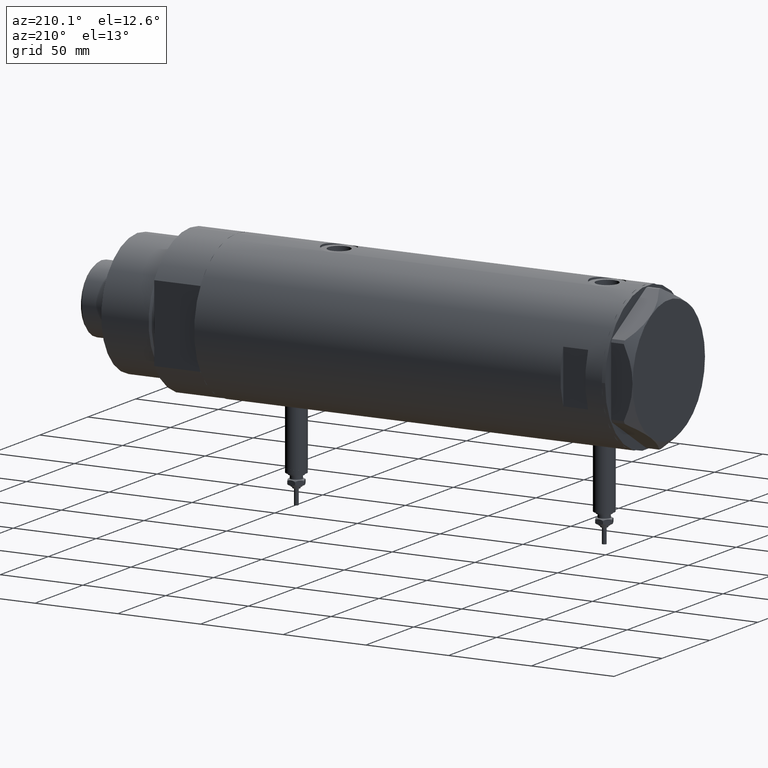
[diagram: clean part render]
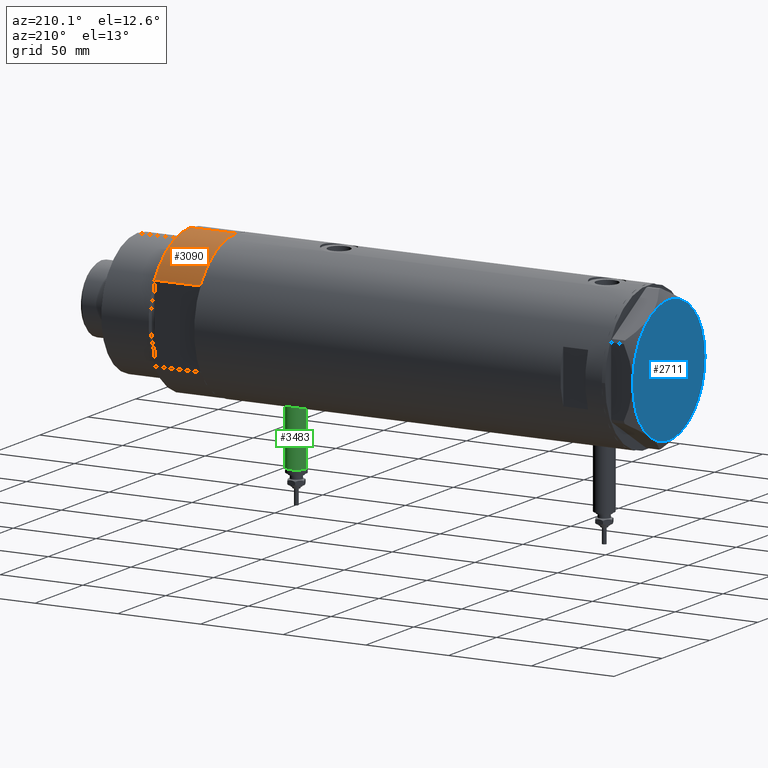
[diagram: same view with three faces highlighted in distinct colors, each labeled with its STEP entity id]
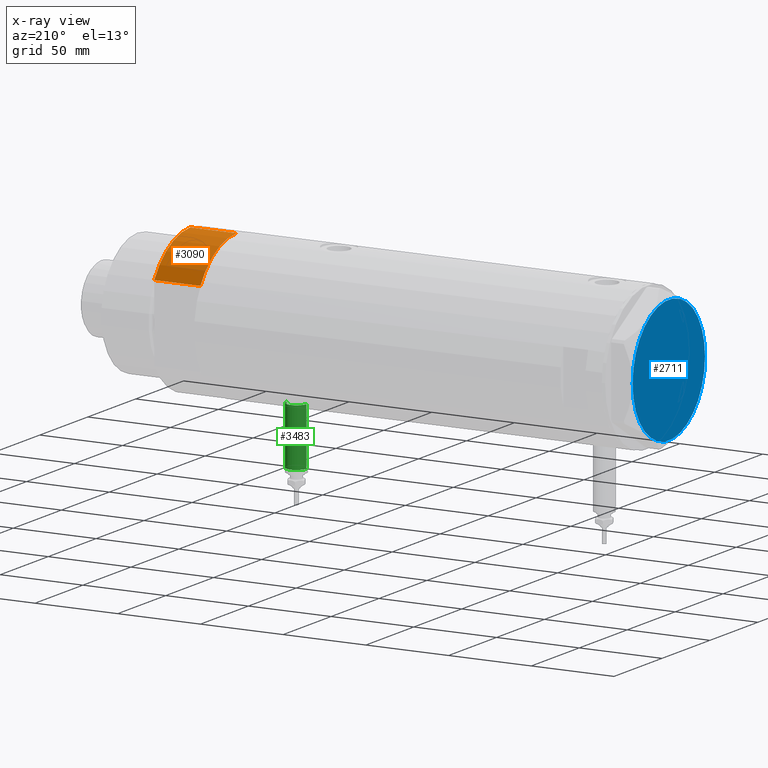
[diagram: x-ray of the same camera — body ghosted, the three highlighted faces saturated]
A machine part, auxiliary view with three faces highlighted in distinct colors.
The next image is the same camera in x-ray (body ghosted, the three faces saturated) — at least one of them is partly hidden behind the body in this view.
Their STEP definitions:

[orange] entity #3090 — the highlighted cylindrical surface (partial cylindrical patch) has radius 44 mm, axis along (-1, -0, 0).
#42 = FACE_OUTER_BOUND ( 'NONE', #2986, .T. ) ;
#98 = VERTEX_POINT ( 'NONE', #804 ) ;
#340 = EDGE_CURVE ( 'NONE', #98, #5887, #3878, .T. ) ;
#479 = CARTESIAN_POINT ( 'NONE',  ( 0.000000000000000000, 0.000000000000000000, 27.89999999999999858 ) ) ;
#549 = DIRECTION ( 'NONE',  ( 1.000000000000000000, 0.000000000000000000, 0.000000000000000000 ) ) ;
#788 = DIRECTION ( 'NONE',  ( 1.000000000000000000, 0.000000000000000000, 0.000000000000000000 ) ) ;
#804 = CARTESIAN_POINT ( 'NONE',  ( -44.00000000000000000, 0.000000000000000000, 27.89999999999999858 ) ) ;
#1004 = EDGE_CURVE ( 'NONE', #2888, #5887, #2919, .T. ) ;
#1361 = CARTESIAN_POINT ( 'NONE',  ( -23.01629857296780557, 37.50000000000000000, 27.89999999999999858 ) ) ;
#1532 = CARTESIAN_POINT ( 'NONE',  ( -23.01629857296780557, 37.50000000000000000, 0.000000000000000000 ) ) ;
#1704 = CARTESIAN_POINT ( 'NONE',  ( 0.000000000000000000, 0.000000000000000000, 0.000000000000000000 ) ) ;
#1796 = DIRECTION ( 'NONE',  ( 0.000000000000000000, 0.000000000000000000, 1.000000000000000000 ) ) ;
#1891 = AXIS2_PLACEMENT_3D ( 'NONE', #1704, #1796, #788 ) ;
#2080 = CIRCLE ( 'NONE', #4705, 44.00000000000000000 ) ;
#2299 = ORIENTED_EDGE ( 'NONE', *, *, #3723, .F. ) ;
#2464 = CARTESIAN_POINT ( 'NONE',  ( -44.00000000000000000, 0.000000000000000000, 27.89999999999999858 ) ) ;
#2812 = DIRECTION ( 'NONE',  ( -0.000000000000000000, -0.000000000000000000, -1.000000000000000000 ) ) ;
#2888 = VERTEX_POINT ( 'NONE', #1532 ) ;
#2919 = CIRCLE ( 'NONE', #1891, 44.00000000000000000 ) ;
#2986 = EDGE_LOOP ( 'NONE', ( #3759, #2299, #4064, #3656 ) ) ;
#3090 = ADVANCED_FACE ( 'NONE', ( #42 ), #3263, .T. ) ;
#3233 = VERTEX_POINT ( 'NONE', #1361 ) ;
#3263 = CYLINDRICAL_SURFACE ( 'NONE', #3630, 44.00000000000000000 ) ;
#3421 = DIRECTION ( 'NONE',  ( -0.000000000000000000, -0.000000000000000000, -1.000000000000000000 ) ) ;
#3600 = VECTOR ( 'NONE', #3421, 1000.000000000000000 ) ;
#3630 = AXIS2_PLACEMENT_3D ( 'NONE', #479, #2812, #4661 ) ;
#3656 = ORIENTED_EDGE ( 'NONE', *, *, #1004, .T. ) ;
#3723 = EDGE_CURVE ( 'NONE', #3233, #98, #2080, .T. ) ;
#3759 = ORIENTED_EDGE ( 'NONE', *, *, #340, .F. ) ;
#3833 = CARTESIAN_POINT ( 'NONE',  ( -44.00000000000000000, 0.000000000000000000, 0.000000000000000000 ) ) ;
#3878 = LINE ( 'NONE', #2464, #3600 ) ;
#4064 = ORIENTED_EDGE ( 'NONE', *, *, #5967, .F. ) ;
#4280 = CARTESIAN_POINT ( 'NONE',  ( -23.01629857296780557, 37.50000000000000000, 0.000000000000000000 ) ) ;
#4660 = DIRECTION ( 'NONE',  ( 0.000000000000000000, 0.000000000000000000, 1.000000000000000000 ) ) ;
#4661 = DIRECTION ( 'NONE',  ( -1.000000000000000000, 0.000000000000000000, 0.000000000000000000 ) ) ;
#4705 = AXIS2_PLACEMENT_3D ( 'NONE', #5085, #4660, #549 ) ;
#4740 = LINE ( 'NONE', #4280, #5190 ) ;
#5085 = CARTESIAN_POINT ( 'NONE',  ( 0.000000000000000000, 0.000000000000000000, 27.89999999999999858 ) ) ;
#5190 = VECTOR ( 'NONE', #5281, 1000.000000000000000 ) ;
#5281 = DIRECTION ( 'NONE',  ( -0.000000000000000000, -0.000000000000000000, 1.000000000000000000 ) ) ;
#5887 = VERTEX_POINT ( 'NONE', #3833 ) ;
#5967 = EDGE_CURVE ( 'NONE', #2888, #3233, #4740, .T. ) ;

[blue] entity #2711 — the highlighted planar face has unit normal (-1, -0, 0).
#170 = VERTEX_POINT ( 'NONE', #4709 ) ;
#237 = DIRECTION ( 'NONE',  ( 1.000000000000000000, 0.000000000000000000, 0.000000000000000000 ) ) ;
#314 = CIRCLE ( 'NONE', #1698, 37.75000000000000000 ) ;
#653 = EDGE_CURVE ( 'NONE', #170, #2483, #4950, .T. ) ;
#673 = DIRECTION ( 'NONE',  ( 0.000000000000000000, 0.000000000000000000, 1.000000000000000000 ) ) ;
#809 = AXIS2_PLACEMENT_3D ( 'NONE', #5568, #1459, #993 ) ;
#891 = CARTESIAN_POINT ( 'NONE',  ( 0.000000000000000000, 0.000000000000000000, 13.00000000000000000 ) ) ;
#928 = EDGE_CURVE ( 'NONE', #1289, #3900, #3603, .T. ) ;
#993 = DIRECTION ( 'NONE',  ( 1.000000000000000000, 0.000000000000000000, 0.000000000000000000 ) ) ;
#1021 = CARTESIAN_POINT ( 'NONE',  ( 0.000000000000000000, 0.000000000000000000, 13.00000000000000000 ) ) ;
#1091 = CARTESIAN_POINT ( 'NONE',  ( -18.87499999999999645, 32.69245899286256218, 13.00000000000000000 ) ) ;
#1289 = VERTEX_POINT ( 'NONE', #1091 ) ;
#1314 = CARTESIAN_POINT ( 'NONE',  ( 18.87500000000000000, 32.69245899286255508, 13.00000000000000000 ) ) ;
#1459 = DIRECTION ( 'NONE',  ( 0.000000000000000000, 0.000000000000000000, 1.000000000000000000 ) ) ;
#1490 = EDGE_CURVE ( 'NONE', #2483, #1608, #2739, .T. ) ;
#1584 = EDGE_CURVE ( 'NONE', #1608, #5105, #5164, .T. ) ;
#1608 = VERTEX_POINT ( 'NONE', #4035 ) ;
#1698 = AXIS2_PLACEMENT_3D ( 'NONE', #2077, #673, #237 ) ;
#1737 = CARTESIAN_POINT ( 'NONE',  ( 0.000000000000000000, 0.000000000000000000, 13.00000000000000000 ) ) ;
#1864 = EDGE_LOOP ( 'NONE', ( #5855, #2487, #4135, #2418, #5658, #4550 ) ) ;
#2077 = CARTESIAN_POINT ( 'NONE',  ( 0.000000000000000000, 0.000000000000000000, 13.00000000000000000 ) ) ;
#2364 = DIRECTION ( 'NONE',  ( 1.000000000000000000, 0.000000000000000000, -0.000000000000000000 ) ) ;
#2401 = EDGE_CURVE ( 'NONE', #5105, #1289, #314, .T. ) ;
#2407 = DIRECTION ( 'NONE',  ( 1.000000000000000000, 0.000000000000000000, 0.000000000000000000 ) ) ;
#2418 = ORIENTED_EDGE ( 'NONE', *, *, #928, .T. ) ;
#2483 = VERTEX_POINT ( 'NONE', #3962 ) ;
#2487 = ORIENTED_EDGE ( 'NONE', *, *, #1584, .T. ) ;
#2711 = ADVANCED_FACE ( 'NONE', ( #5680 ), #3719, .T. ) ;
#2739 = CIRCLE ( 'NONE', #5061, 37.75000000000000000 ) ;
#3197 = DIRECTION ( 'NONE',  ( 0.000000000000000000, 0.000000000000000000, 1.000000000000000000 ) ) ;
#3244 = AXIS2_PLACEMENT_3D ( 'NONE', #5109, #3197, #5590 ) ;
#3351 = DIRECTION ( 'NONE',  ( 0.000000000000000000, 0.000000000000000000, 1.000000000000000000 ) ) ;
#3563 = DIRECTION ( 'NONE',  ( 1.000000000000000000, 0.000000000000000000, 0.000000000000000000 ) ) ;
#3603 = CIRCLE ( 'NONE', #4375, 37.75000000000000000 ) ;
#3696 = DIRECTION ( 'NONE',  ( 0.000000000000000000, 0.000000000000000000, 1.000000000000000000 ) ) ;
#3719 = PLANE ( 'NONE',  #5549 ) ;
#3789 = DIRECTION ( 'NONE',  ( 0.000000000000000000, 0.000000000000000000, 1.000000000000000000 ) ) ;
#3806 = CARTESIAN_POINT ( 'NONE',  ( 0.000000000000000000, 0.000000000000000000, 13.00000000000000000 ) ) ;
#3900 = VERTEX_POINT ( 'NONE', #4919 ) ;
#3902 = AXIS2_PLACEMENT_3D ( 'NONE', #1021, #3789, #2407 ) ;
#3962 = CARTESIAN_POINT ( 'NONE',  ( 18.87499999999998579, -32.69245899286256218, 13.00000000000000000 ) ) ;
#4035 = CARTESIAN_POINT ( 'NONE',  ( 37.75000000000000711, 1.802777518484591547E-14, 13.00000000000000000 ) ) ;
#4135 = ORIENTED_EDGE ( 'NONE', *, *, #2401, .T. ) ;
#4375 = AXIS2_PLACEMENT_3D ( 'NONE', #1737, #5833, #3563 ) ;
#4550 = ORIENTED_EDGE ( 'NONE', *, *, #653, .T. ) ;
#4640 = DIRECTION ( 'NONE',  ( 1.000000000000000000, 0.000000000000000000, 0.000000000000000000 ) ) ;
#4709 = CARTESIAN_POINT ( 'NONE',  ( -18.87499999999999645, -32.69245899286255508, 13.00000000000000000 ) ) ;
#4919 = CARTESIAN_POINT ( 'NONE',  ( -37.75000000000000000, -1.201851678989727067E-14, 13.00000000000000000 ) ) ;
#4950 = CIRCLE ( 'NONE', #809, 37.75000000000000000 ) ;
#5061 = AXIS2_PLACEMENT_3D ( 'NONE', #891, #3696, #4640 ) ;
#5105 = VERTEX_POINT ( 'NONE', #1314 ) ;
#5109 = CARTESIAN_POINT ( 'NONE',  ( 0.000000000000000000, 0.000000000000000000, 13.00000000000000000 ) ) ;
#5164 = CIRCLE ( 'NONE', #3902, 37.75000000000000000 ) ;
#5272 = EDGE_CURVE ( 'NONE', #3900, #170, #5853, .T. ) ;
#5549 = AXIS2_PLACEMENT_3D ( 'NONE', #3806, #3351, #2364 ) ;
#5568 = CARTESIAN_POINT ( 'NONE',  ( 0.000000000000000000, 0.000000000000000000, 13.00000000000000000 ) ) ;
#5590 = DIRECTION ( 'NONE',  ( 1.000000000000000000, 0.000000000000000000, 0.000000000000000000 ) ) ;
#5658 = ORIENTED_EDGE ( 'NONE', *, *, #5272, .T. ) ;
#5680 = FACE_OUTER_BOUND ( 'NONE', #1864, .T. ) ;
#5833 = DIRECTION ( 'NONE',  ( 0.000000000000000000, 0.000000000000000000, 1.000000000000000000 ) ) ;
#5853 = CIRCLE ( 'NONE', #3244, 37.75000000000000000 ) ;
#5855 = ORIENTED_EDGE ( 'NONE', *, *, #1490, .T. ) ;

[green] entity #3483 — the highlighted cylindrical surface (edge-blend (fillet) strip) has radius 6 mm, axis along (0, 0, 1).
#306 = DIRECTION ( 'NONE',  ( -1.000000000000000000, 0.000000000000000000, 0.000000000000000000 ) ) ;
#337 = LINE ( 'NONE', #5403, #2862 ) ;
#911 = CARTESIAN_POINT ( 'NONE',  ( -77.50000000000000000, 0.000000000000000000, -86.90000000000000568 ) ) ;
#1125 = AXIS2_PLACEMENT_3D ( 'NONE', #4069, #4552, #5043 ) ;
#1284 = CARTESIAN_POINT ( 'NONE',  ( -42.79999999999999716, 0.000000000000000000, -86.90000000000000568 ) ) ;
#1310 = VECTOR ( 'NONE', #3968, 1000.000000000000000 ) ;
#1447 = EDGE_CURVE ( 'NONE', #3983, #4400, #2609, .T. ) ;
#1801 = CIRCLE ( 'NONE', #3424, 6.000000000000005329 ) ;
#2004 = VERTEX_POINT ( 'NONE', #3499 ) ;
#2136 = EDGE_CURVE ( 'NONE', #3983, #2004, #2937, .T. ) ;
#2137 = EDGE_CURVE ( 'NONE', #4400, #5426, #1801, .T. ) ;
#2609 = LINE ( 'NONE', #3996, #1310 ) ;
#2710 = ORIENTED_EDGE ( 'NONE', *, *, #2136, .F. ) ;
#2750 = AXIS2_PLACEMENT_3D ( 'NONE', #911, #3104, #4589 ) ;
#2832 = ORIENTED_EDGE ( 'NONE', *, *, #5636, .F. ) ;
#2862 = VECTOR ( 'NONE', #5884, 1000.000000000000000 ) ;
#2937 = CIRCLE ( 'NONE', #2750, 6.000000000000005329 ) ;
#3104 = DIRECTION ( 'NONE',  ( -1.000000000000000000, 0.000000000000000000, 0.000000000000000000 ) ) ;
#3166 = FACE_OUTER_BOUND ( 'NONE', #5518, .T. ) ;
#3424 = AXIS2_PLACEMENT_3D ( 'NONE', #1284, #306, #4982 ) ;
#3483 = ADVANCED_FACE ( 'NONE', ( #3166 ), #4626, .T. ) ;
#3499 = CARTESIAN_POINT ( 'NONE',  ( -77.50000000000000000, 0.000000000000000000, -92.90000000000000568 ) ) ;
#3968 = DIRECTION ( 'NONE',  ( 1.000000000000000000, -0.000000000000000000, -0.000000000000000000 ) ) ;
#3983 = VERTEX_POINT ( 'NONE', #4103 ) ;
#3996 = CARTESIAN_POINT ( 'NONE',  ( -77.50000000000000000, 7.347880794884122694E-16, -80.90000000000000568 ) ) ;
#4069 = CARTESIAN_POINT ( 'NONE',  ( -77.50000000000000000, 0.000000000000000000, -86.90000000000000568 ) ) ;
#4103 = CARTESIAN_POINT ( 'NONE',  ( -77.50000000000000000, 7.347880794884119736E-16, -80.90000000000000568 ) ) ;
#4189 = CARTESIAN_POINT ( 'NONE',  ( -42.79999999999999716, 7.347880794884119736E-16, -80.90000000000000568 ) ) ;
#4400 = VERTEX_POINT ( 'NONE', #4189 ) ;
#4552 = DIRECTION ( 'NONE',  ( 1.000000000000000000, -0.000000000000000000, -0.000000000000000000 ) ) ;
#4589 = DIRECTION ( 'NONE',  ( 0.000000000000000000, 0.000000000000000000, 1.000000000000000000 ) ) ;
#4626 = CYLINDRICAL_SURFACE ( 'NONE', #1125, 6.000000000000005329 ) ;
#4764 = ORIENTED_EDGE ( 'NONE', *, *, #2137, .T. ) ;
#4982 = DIRECTION ( 'NONE',  ( 0.000000000000000000, 0.000000000000000000, 1.000000000000000000 ) ) ;
#5043 = DIRECTION ( 'NONE',  ( 0.000000000000000000, 0.000000000000000000, -1.000000000000000000 ) ) ;
#5176 = ORIENTED_EDGE ( 'NONE', *, *, #1447, .T. ) ;
#5403 = CARTESIAN_POINT ( 'NONE',  ( -77.50000000000000000, 0.000000000000000000, -92.90000000000000568 ) ) ;
#5426 = VERTEX_POINT ( 'NONE', #5728 ) ;
#5518 = EDGE_LOOP ( 'NONE', ( #2710, #5176, #4764, #2832 ) ) ;
#5636 = EDGE_CURVE ( 'NONE', #2004, #5426, #337, .T. ) ;
#5728 = CARTESIAN_POINT ( 'NONE',  ( -42.79999999999999716, 0.000000000000000000, -92.90000000000000568 ) ) ;
#5884 = DIRECTION ( 'NONE',  ( 1.000000000000000000, -0.000000000000000000, -0.000000000000000000 ) ) ;